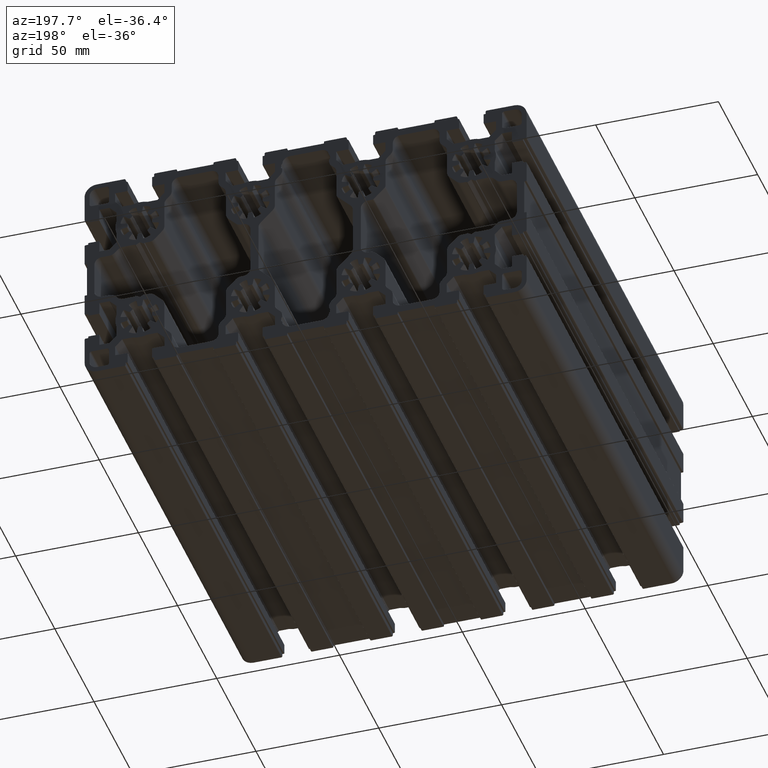
[diagram: clean part render]
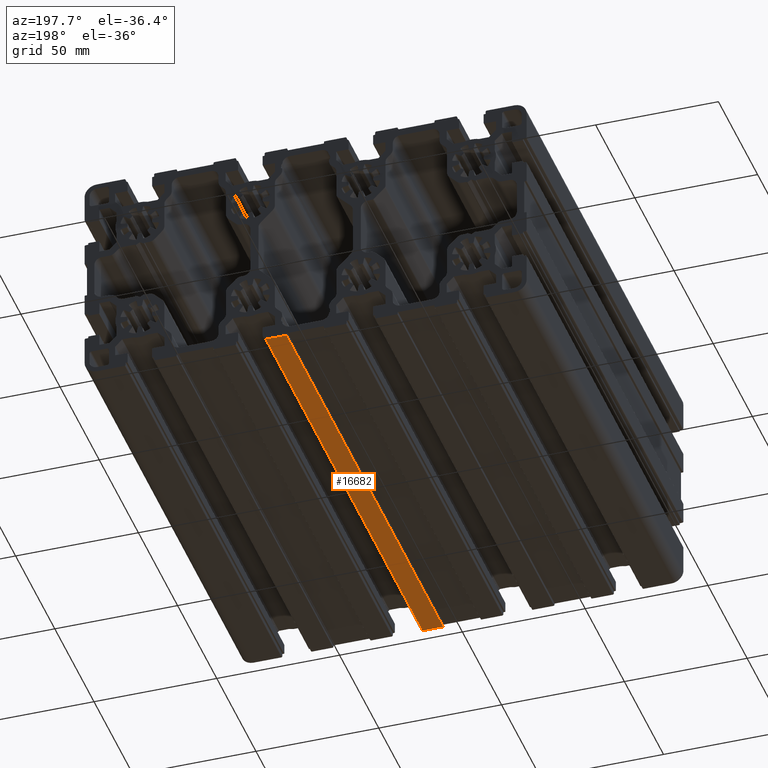
[diagram: same view with one face highlighted and labeled with its STEP entity id]
A machine part, auxiliary view. The second image highlights one B-rep face of the part: STEP entity #16682.
In plain terms, the highlighted planar face has unit normal (0, 0, -1).
Its self-contained STEP definition (entity closure, byte-faithful):
#817 = VERTEX_POINT ( 'NONE', #34898 ) ;
#1686 = DIRECTION ( 'NONE',  ( -1.000000000000000000, 0.0000000000000000000, -0.0000000000000000000 ) ) ;
#2801 = DIRECTION ( 'NONE',  ( -0.0000000000000000000, -1.000000000000000000, -0.0000000000000000000 ) ) ;
#5945 = VERTEX_POINT ( 'NONE', #23595 ) ;
#6433 = CARTESIAN_POINT ( 'NONE',  ( 16.19999999999999900, 0.0000000000000000000, -45.00000000000000000 ) ) ;
#7281 = CARTESIAN_POINT ( 'NONE',  ( 16.19999999999999900, 0.0000000000000000000, -45.00000000000000000 ) ) ;
#8196 = CARTESIAN_POINT ( 'NONE',  ( 8.881784197001250700E-015, 200.0000000000000000, -45.00000000000000000 ) ) ;
#8335 = LINE ( 'NONE', #26723, #41163 ) ;
#8360 = PLANE ( 'NONE',  #37751 ) ;
#9167 = EDGE_CURVE ( 'NONE', #5945, #20250, #11869, .T. ) ;
#11162 = EDGE_CURVE ( 'NONE', #20250, #31583, #37818, .T. ) ;
#11247 = CARTESIAN_POINT ( 'NONE',  ( 7.800000000000010500, 0.0000000000000000000, -45.00000000000000000 ) ) ;
#11395 = VECTOR ( 'NONE', #2801, 1000.000000000000000 ) ;
#11869 = LINE ( 'NONE', #6433, #11395 ) ;
#14880 = VECTOR ( 'NONE', #37658, 1000.000000000000000 ) ;
#15138 = EDGE_CURVE ( 'NONE', #5945, #817, #30879, .T. ) ;
#15175 = DIRECTION ( 'NONE',  ( 0.0000000000000000000, 0.0000000000000000000, -1.000000000000000000 ) ) ;
#16649 = ORIENTED_EDGE ( 'NONE', *, *, #9167, .T. ) ;
#16682 = ADVANCED_FACE ( 'NONE', ( #31302 ), #8360, .T. ) ;
#18272 = DIRECTION ( 'NONE',  ( 0.0000000000000000000, 1.000000000000000000, 0.0000000000000000000 ) ) ;
#18624 = CARTESIAN_POINT ( 'NONE',  ( 16.19999999999999900, 0.0000000000000000000, -45.00000000000000000 ) ) ;
#20250 = VERTEX_POINT ( 'NONE', #37306 ) ;
#21366 = DIRECTION ( 'NONE',  ( -1.000000000000000000, -0.0000000000000000000, 0.0000000000000000000 ) ) ;
#21991 = VECTOR ( 'NONE', #21366, 1000.000000000000000 ) ;
#22356 = EDGE_CURVE ( 'NONE', #31583, #817, #8335, .T. ) ;
#22471 = ORIENTED_EDGE ( 'NONE', *, *, #11162, .T. ) ;
#23595 = CARTESIAN_POINT ( 'NONE',  ( 16.19999999999999900, 200.0000000000000000, -45.00000000000000000 ) ) ;
#26723 = CARTESIAN_POINT ( 'NONE',  ( 7.800000000000010500, 0.0000000000000000000, -45.00000000000000000 ) ) ;
#30879 = LINE ( 'NONE', #8196, #21991 ) ;
#31302 = FACE_OUTER_BOUND ( 'NONE', #36437, .T. ) ;
#31583 = VERTEX_POINT ( 'NONE', #11247 ) ;
#31893 = ORIENTED_EDGE ( 'NONE', *, *, #15138, .F. ) ;
#32439 = ORIENTED_EDGE ( 'NONE', *, *, #22356, .T. ) ;
#34898 = CARTESIAN_POINT ( 'NONE',  ( 7.800000000000010500, 200.0000000000000000, -45.00000000000000000 ) ) ;
#36437 = EDGE_LOOP ( 'NONE', ( #22471, #32439, #31893, #16649 ) ) ;
#37306 = CARTESIAN_POINT ( 'NONE',  ( 16.19999999999999900, 0.0000000000000000000, -45.00000000000000000 ) ) ;
#37658 = DIRECTION ( 'NONE',  ( -1.000000000000000000, 0.0000000000000000000, -0.0000000000000000000 ) ) ;
#37751 = AXIS2_PLACEMENT_3D ( 'NONE', #18624, #15175, #1686 ) ;
#37818 = LINE ( 'NONE', #7281, #14880 ) ;
#41163 = VECTOR ( 'NONE', #18272, 1000.000000000000000 ) ;